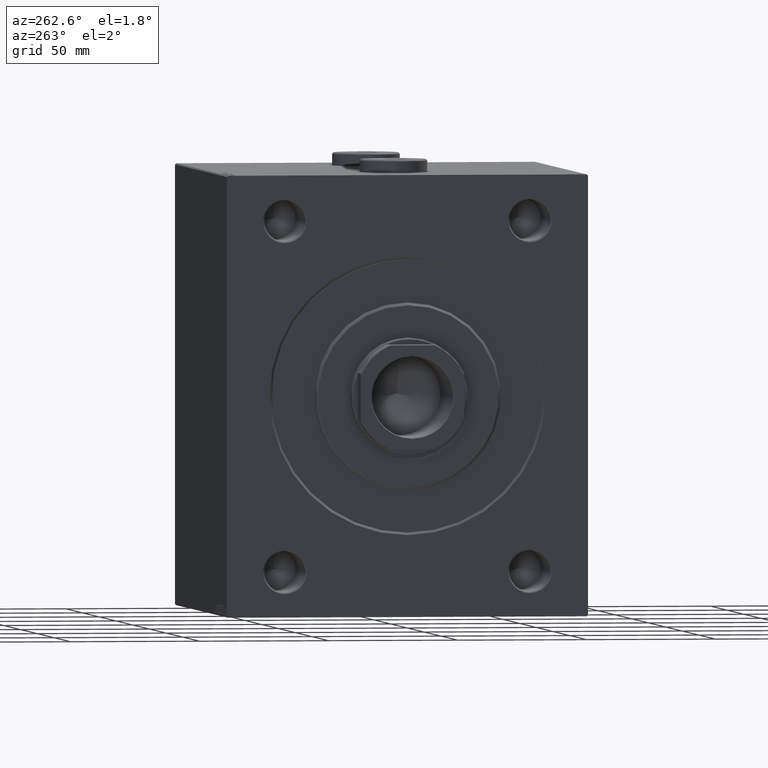
[diagram: clean part render]
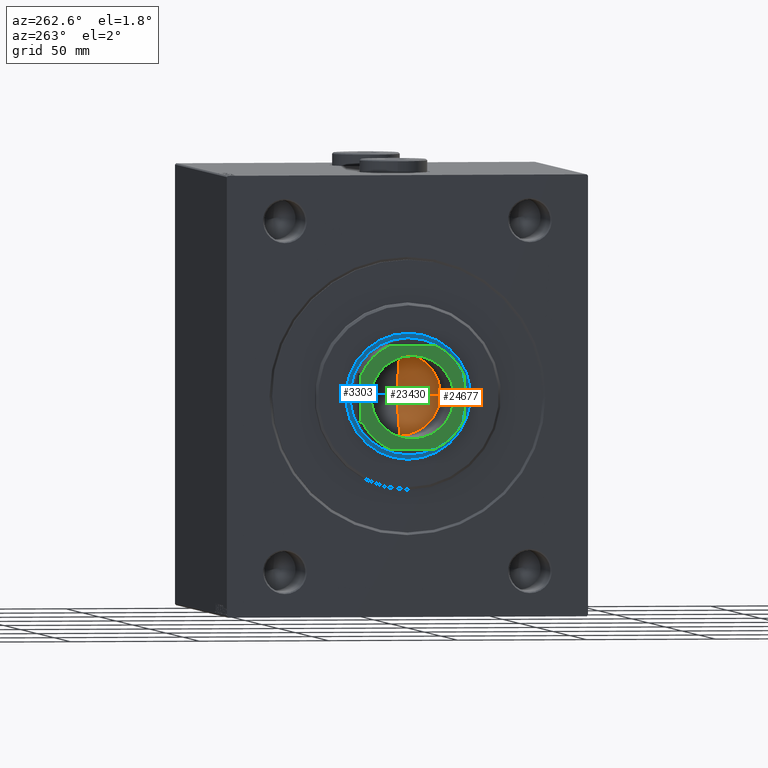
[diagram: same view with three faces highlighted in distinct colors, each labeled with its STEP entity id]
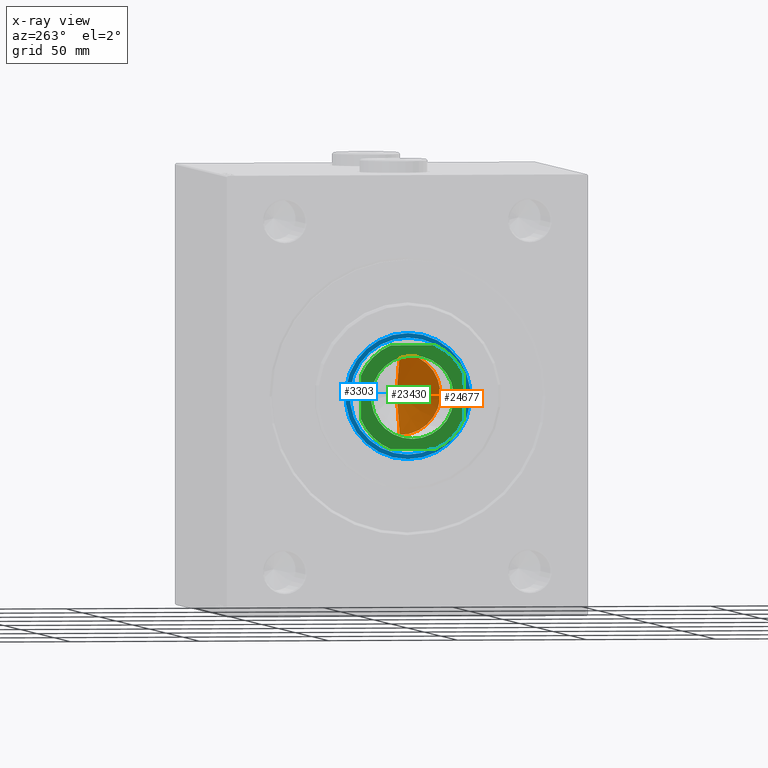
[diagram: x-ray of the same camera — body ghosted, the three highlighted faces saturated]
A machine part, auxiliary view with three faces highlighted in distinct colors.
The next image is the same camera in x-ray (body ghosted, the three faces saturated) — at least one of them is partly hidden behind the body in this view.
Their STEP definitions:

[orange] entity #24677 — the highlighted conical surface has half-angle 59 deg.
#809 = ORIENTED_EDGE ( 'NONE', *, *, #4243, .T. ) ;
#1504 = VERTEX_POINT ( 'NONE', #42912 ) ;
#2987 = DIRECTION ( 'NONE',  ( -0.000000000000000000, -0.000000000000000000, 1.000000000000000000 ) ) ;
#3400 = CARTESIAN_POINT ( 'NONE',  ( -15.74999999999999289, 1.928818708657080556E-15, 106.0000000000000142 ) ) ;
#4243 = EDGE_CURVE ( 'NONE', #23657, #1504, #35039, .T. ) ;
#7632 = CARTESIAN_POINT ( 'NONE',  ( -1.199718644317817648E-14, 0.000000000000000000, 96.53644525031593560 ) ) ;
#7640 = CONICAL_SURFACE ( 'NONE', #39381, 15.74999999999999289, 1.029744258676653867 ) ;
#11570 = AXIS2_PLACEMENT_3D ( 'NONE', #28990, #43110, #44473 ) ;
#16396 = CARTESIAN_POINT ( 'NONE',  ( 0.000000000000000000, 0.000000000000000000, 106.0000000000000142 ) ) ;
#20766 = DIRECTION ( 'NONE',  ( 1.000000000000000000, 0.000000000000000000, 0.000000000000000000 ) ) ;
#21135 = EDGE_LOOP ( 'NONE', ( #26453, #809, #21649 ) ) ;
#21649 = ORIENTED_EDGE ( 'NONE', *, *, #33182, .T. ) ;
#22288 = DIRECTION ( 'NONE',  ( 0.8571673007021120005, 0.000000000000000000, 0.5150380749100547106 ) ) ;
#23459 = CARTESIAN_POINT ( 'NONE',  ( 15.74999999999999289, 0.000000000000000000, 106.0000000000000142 ) ) ;
#23657 = VERTEX_POINT ( 'NONE', #7632 ) ;
#24217 = FACE_OUTER_BOUND ( 'NONE', #21135, .T. ) ;
#24677 = ADVANCED_FACE ( 'NONE', ( #24217 ), #7640, .F. ) ;
#26453 = ORIENTED_EDGE ( 'NONE', *, *, #43004, .F. ) ;
#27767 = VECTOR ( 'NONE', #34588, 1000.000000000000000 ) ;
#27984 = VECTOR ( 'NONE', #22288, 1000.000000000000000 ) ;
#28990 = CARTESIAN_POINT ( 'NONE',  ( 0.000000000000000000, 0.000000000000000000, 106.0000000000000142 ) ) ;
#29436 = LINE ( 'NONE', #40082, #27984 ) ;
#33182 = EDGE_CURVE ( 'NONE', #1504, #41858, #45515, .T. ) ;
#34588 = DIRECTION ( 'NONE',  ( -0.8571673007021120005, 1.049727191138618326E-16, 0.5150380749100547106 ) ) ;
#35039 = LINE ( 'NONE', #3400, #27767 ) ;
#39381 = AXIS2_PLACEMENT_3D ( 'NONE', #16396, #2987, #20766 ) ;
#40082 = CARTESIAN_POINT ( 'NONE',  ( 15.74999999999999289, 0.000000000000000000, 106.0000000000000142 ) ) ;
#41858 = VERTEX_POINT ( 'NONE', #23459 ) ;
#42912 = CARTESIAN_POINT ( 'NONE',  ( -15.74999999999999289, 1.928818708657080556E-15, 106.0000000000000142 ) ) ;
#43004 = EDGE_CURVE ( 'NONE', #23657, #41858, #29436, .T. ) ;
#43110 = DIRECTION ( 'NONE',  ( -0.000000000000000000, -0.000000000000000000, 1.000000000000000000 ) ) ;
#44473 = DIRECTION ( 'NONE',  ( 1.000000000000000000, 0.000000000000000000, 0.000000000000000000 ) ) ;
#45515 = CIRCLE ( 'NONE', #11570, 15.74999999999999289 ) ;

[blue] entity #3303 — the highlighted planar face has unit normal (-1, 0, 0).
#399 = ORIENTED_EDGE ( 'NONE', *, *, #16770, .F. ) ;
#1675 = DIRECTION ( 'NONE',  ( 1.000000000000000000, 0.000000000000000000, 0.000000000000000000 ) ) ;
#2277 = VERTEX_POINT ( 'NONE', #6247 ) ;
#3303 = ADVANCED_FACE ( 'NONE', ( #13141, #41322 ), #41551, .T. ) ;
#6247 = CARTESIAN_POINT ( 'NONE',  ( 1.500000000000000000, 0.000000000000000000, 24.25000000000000000 ) ) ;
#6352 = AXIS2_PLACEMENT_3D ( 'NONE', #23747, #37858, #45028 ) ;
#7366 = EDGE_LOOP ( 'NONE', ( #399, #30444 ) ) ;
#7612 = CIRCLE ( 'NONE', #33441, 22.50000000000000355 ) ;
#9375 = VERTEX_POINT ( 'NONE', #45445 ) ;
#9876 = AXIS2_PLACEMENT_3D ( 'NONE', #36201, #38767, #10799 ) ;
#10799 = DIRECTION ( 'NONE',  ( 0.000000000000000000, 0.000000000000000000, -1.000000000000000000 ) ) ;
#11320 = EDGE_CURVE ( 'NONE', #9375, #2277, #17745, .T. ) ;
#13141 = FACE_BOUND ( 'NONE', #7366, .T. ) ;
#16421 = CIRCLE ( 'NONE', #39285, 22.50000000000000355 ) ;
#16770 = EDGE_CURVE ( 'NONE', #31981, #17614, #16421, .T. ) ;
#17614 = VERTEX_POINT ( 'NONE', #45338 ) ;
#17745 = CIRCLE ( 'NONE', #40600, 24.25000000000000000 ) ;
#19207 = ORIENTED_EDGE ( 'NONE', *, *, #25464, .T. ) ;
#21246 = DIRECTION ( 'NONE',  ( 1.000000000000000000, 0.000000000000000000, 0.000000000000000000 ) ) ;
#21636 = EDGE_LOOP ( 'NONE', ( #19207, #26611 ) ) ;
#22443 = CIRCLE ( 'NONE', #9876, 24.25000000000000000 ) ;
#22858 = EDGE_CURVE ( 'NONE', #17614, #31981, #7612, .T. ) ;
#22917 = CARTESIAN_POINT ( 'NONE',  ( 1.500000000000000000, 0.000000000000000000, 0.000000000000000000 ) ) ;
#23747 = CARTESIAN_POINT ( 'NONE',  ( 1.500000000000000000, 0.000000000000000000, 0.000000000000000000 ) ) ;
#25464 = EDGE_CURVE ( 'NONE', #2277, #9375, #22443, .T. ) ;
#26611 = ORIENTED_EDGE ( 'NONE', *, *, #11320, .T. ) ;
#30302 = DIRECTION ( 'NONE',  ( 0.000000000000000000, 0.000000000000000000, -1.000000000000000000 ) ) ;
#30444 = ORIENTED_EDGE ( 'NONE', *, *, #22858, .F. ) ;
#31431 = DIRECTION ( 'NONE',  ( 1.000000000000000000, 0.000000000000000000, 0.000000000000000000 ) ) ;
#31869 = DIRECTION ( 'NONE',  ( 0.000000000000000000, 0.000000000000000000, -1.000000000000000000 ) ) ;
#31981 = VERTEX_POINT ( 'NONE', #37870 ) ;
#33441 = AXIS2_PLACEMENT_3D ( 'NONE', #42054, #31431, #42751 ) ;
#36201 = CARTESIAN_POINT ( 'NONE',  ( 1.500000000000000000, 0.000000000000000000, 0.000000000000000000 ) ) ;
#37858 = DIRECTION ( 'NONE',  ( 1.000000000000000000, 0.000000000000000000, 0.000000000000000000 ) ) ;
#37870 = CARTESIAN_POINT ( 'NONE',  ( 1.499999999999999556, 0.000000000000000000, -22.50000000000000355 ) ) ;
#38767 = DIRECTION ( 'NONE',  ( 1.000000000000000000, 0.000000000000000000, 0.000000000000000000 ) ) ;
#39285 = AXIS2_PLACEMENT_3D ( 'NONE', #45744, #21246, #31869 ) ;
#40600 = AXIS2_PLACEMENT_3D ( 'NONE', #22917, #1675, #30302 ) ;
#41322 = FACE_OUTER_BOUND ( 'NONE', #21636, .T. ) ;
#41551 = PLANE ( 'NONE',  #6352 ) ;
#42054 = CARTESIAN_POINT ( 'NONE',  ( 1.499999999999999556, 0.000000000000000000, 0.000000000000000000 ) ) ;
#42751 = DIRECTION ( 'NONE',  ( 0.000000000000000000, 0.000000000000000000, -1.000000000000000000 ) ) ;
#45028 = DIRECTION ( 'NONE',  ( 0.000000000000000000, 0.000000000000000000, -1.000000000000000000 ) ) ;
#45338 = CARTESIAN_POINT ( 'NONE',  ( 1.499999999999999556, 2.755455298081545172E-15, 22.50000000000000355 ) ) ;
#45445 = CARTESIAN_POINT ( 'NONE',  ( 1.500000000000000000, 2.969768487932331287E-15, -24.25000000000000000 ) ) ;
#45744 = CARTESIAN_POINT ( 'NONE',  ( 1.499999999999999556, 0.000000000000000000, 0.000000000000000000 ) ) ;

[green] entity #23430 — the highlighted planar face has unit normal (-1, 0, 0).
#383 = CARTESIAN_POINT ( 'NONE',  ( 8.419619943916520910, -20.00000000000001066, 144.0000000000000284 ) ) ;
#470 = VERTEX_POINT ( 'NONE', #42629 ) ;
#2636 = DIRECTION ( 'NONE',  ( -0.000000000000000000, 0.000000000000000000, 1.000000000000000000 ) ) ;
#3673 = CARTESIAN_POINT ( 'NONE',  ( 8.419619943916563543, 19.99999999999999289, 144.0000000000000284 ) ) ;
#3768 = DIRECTION ( 'NONE',  ( 1.000000000000000000, 0.000000000000000000, 0.000000000000000000 ) ) ;
#3926 = CIRCLE ( 'NONE', #34913, 16.05000000000006466 ) ;
#4250 = VERTEX_POINT ( 'NONE', #17034 ) ;
#4438 = DIRECTION ( 'NONE',  ( 1.000000000000000000, 0.000000000000000000, 0.000000000000000000 ) ) ;
#4910 = CIRCLE ( 'NONE', #27010, 21.69999999999993889 ) ;
#6248 = CARTESIAN_POINT ( 'NONE',  ( -8.419619943916700322, 19.99999999999999289, 144.0000000000000284 ) ) ;
#6491 = PLANE ( 'NONE',  #43760 ) ;
#6495 = DIRECTION ( 'NONE',  ( -0.000000000000000000, 0.000000000000000000, 1.000000000000000000 ) ) ;
#7232 = CARTESIAN_POINT ( 'NONE',  ( -20.00000000000000711, 19.99999999999998934, 144.0000000000000284 ) ) ;
#7535 = EDGE_CURVE ( 'NONE', #39235, #9754, #25749, .T. ) ;
#8171 = CARTESIAN_POINT ( 'NONE',  ( 0.000000000000000000, 0.000000000000000000, 144.0000000000000284 ) ) ;
#8764 = AXIS2_PLACEMENT_3D ( 'NONE', #8171, #25950, #32442 ) ;
#8799 = EDGE_CURVE ( 'NONE', #470, #38943, #27224, .T. ) ;
#8813 = FACE_BOUND ( 'NONE', #37124, .T. ) ;
#9754 = VERTEX_POINT ( 'NONE', #13051 ) ;
#9972 = LINE ( 'NONE', #16470, #19387 ) ;
#10332 = VERTEX_POINT ( 'NONE', #383 ) ;
#11015 = AXIS2_PLACEMENT_3D ( 'NONE', #21990, #36084, #4438 ) ;
#11264 = ORIENTED_EDGE ( 'NONE', *, *, #14609, .T. ) ;
#12881 = VECTOR ( 'NONE', #14620, 1000.000000000000000 ) ;
#13051 = CARTESIAN_POINT ( 'NONE',  ( -20.00000000000000355, 8.419619943916666571, 144.0000000000000284 ) ) ;
#13220 = DIRECTION ( 'NONE',  ( 1.000000000000000000, 0.000000000000000000, 0.000000000000000000 ) ) ;
#13426 = DIRECTION ( 'NONE',  ( 1.000000000000000000, 0.000000000000000000, 0.000000000000000000 ) ) ;
#14455 = CARTESIAN_POINT ( 'NONE',  ( -20.00000000000000711, 19.99999999999998934, 144.0000000000000284 ) ) ;
#14609 = EDGE_CURVE ( 'NONE', #9754, #42459, #21386, .T. ) ;
#14620 = DIRECTION ( 'NONE',  ( -1.000000000000000000, -8.673617379884035472E-17, -0.000000000000000000 ) ) ;
#14877 = ORIENTED_EDGE ( 'NONE', *, *, #40748, .T. ) ;
#16446 = CARTESIAN_POINT ( 'NONE',  ( 0.000000000000000000, 0.000000000000000000, 144.0000000000000284 ) ) ;
#16470 = CARTESIAN_POINT ( 'NONE',  ( -19.99999999999999645, -20.00000000000001066, 144.0000000000000284 ) ) ;
#16878 = ORIENTED_EDGE ( 'NONE', *, *, #8799, .T. ) ;
#17034 = CARTESIAN_POINT ( 'NONE',  ( -8.419619943916655913, -20.00000000000001066, 144.0000000000000284 ) ) ;
#17075 = DIRECTION ( 'NONE',  ( -2.602085213965210149E-16, 1.000000000000000000, -0.000000000000000000 ) ) ;
#17303 = LINE ( 'NONE', #45036, #41830 ) ;
#18426 = CIRCLE ( 'NONE', #28716, 21.69999999999993889 ) ;
#18504 = CARTESIAN_POINT ( 'NONE',  ( 19.99999999999999289, 8.419619943916563543, 144.0000000000000284 ) ) ;
#19387 = VECTOR ( 'NONE', #13220, 1000.000000000000000 ) ;
#19967 = CARTESIAN_POINT ( 'NONE',  ( 0.000000000000000000, 0.000000000000000000, 144.0000000000000284 ) ) ;
#20283 = VERTEX_POINT ( 'NONE', #18504 ) ;
#20587 = DIRECTION ( 'NONE',  ( 1.000000000000000000, 0.000000000000000000, 0.000000000000000000 ) ) ;
#20845 = ORIENTED_EDGE ( 'NONE', *, *, #37719, .T. ) ;
#21386 = LINE ( 'NONE', #14455, #28872 ) ;
#21767 = DIRECTION ( 'NONE',  ( 0.000000000000000000, -0.000000000000000000, -1.000000000000000000 ) ) ;
#21870 = EDGE_CURVE ( 'NONE', #4250, #10332, #9972, .T. ) ;
#21990 = CARTESIAN_POINT ( 'NONE',  ( 0.000000000000000000, 0.000000000000000000, 144.0000000000000284 ) ) ;
#22047 = DIRECTION ( 'NONE',  ( -0.000000000000000000, 0.000000000000000000, 1.000000000000000000 ) ) ;
#22158 = EDGE_LOOP ( 'NONE', ( #20845, #14877, #31373, #30814, #11264, #36418, #39066, #32393 ) ) ;
#22235 = FACE_OUTER_BOUND ( 'NONE', #22158, .T. ) ;
#22649 = EDGE_CURVE ( 'NONE', #38943, #470, #3926, .T. ) ;
#23430 = ADVANCED_FACE ( 'NONE', ( #8813, #22235 ), #6491, .T. ) ;
#23578 = DIRECTION ( 'NONE',  ( -0.000000000000000000, 0.000000000000000000, 1.000000000000000000 ) ) ;
#24754 = VERTEX_POINT ( 'NONE', #3673 ) ;
#25295 = DIRECTION ( 'NONE',  ( 2.602085213965210642E-16, -1.000000000000000000, 0.000000000000000000 ) ) ;
#25749 = CIRCLE ( 'NONE', #8764, 21.69999999999998863 ) ;
#25813 = EDGE_CURVE ( 'NONE', #42459, #4250, #26126, .T. ) ;
#25950 = DIRECTION ( 'NONE',  ( -0.000000000000000000, 0.000000000000000000, 1.000000000000000000 ) ) ;
#26126 = CIRCLE ( 'NONE', #39415, 21.69999999999998863 ) ;
#26834 = EDGE_CURVE ( 'NONE', #24754, #39235, #28235, .T. ) ;
#27010 = AXIS2_PLACEMENT_3D ( 'NONE', #38158, #6495, #20587 ) ;
#27224 = CIRCLE ( 'NONE', #11015, 16.05000000000006466 ) ;
#28235 = LINE ( 'NONE', #7232, #12881 ) ;
#28716 = AXIS2_PLACEMENT_3D ( 'NONE', #19967, #2636, #41900 ) ;
#28872 = VECTOR ( 'NONE', #25295, 1000.000000000000000 ) ;
#29694 = ORIENTED_EDGE ( 'NONE', *, *, #22649, .T. ) ;
#30337 = VERTEX_POINT ( 'NONE', #41946 ) ;
#30814 = ORIENTED_EDGE ( 'NONE', *, *, #7535, .T. ) ;
#31373 = ORIENTED_EDGE ( 'NONE', *, *, #26834, .T. ) ;
#31710 = EDGE_CURVE ( 'NONE', #10332, #30337, #4910, .T. ) ;
#32393 = ORIENTED_EDGE ( 'NONE', *, *, #31710, .T. ) ;
#32442 = DIRECTION ( 'NONE',  ( 1.000000000000000000, 0.000000000000000000, 0.000000000000000000 ) ) ;
#34913 = AXIS2_PLACEMENT_3D ( 'NONE', #42578, #21767, #3768 ) ;
#36084 = DIRECTION ( 'NONE',  ( 0.000000000000000000, -0.000000000000000000, -1.000000000000000000 ) ) ;
#36418 = ORIENTED_EDGE ( 'NONE', *, *, #25813, .T. ) ;
#37124 = EDGE_LOOP ( 'NONE', ( #29694, #16878 ) ) ;
#37719 = EDGE_CURVE ( 'NONE', #30337, #20283, #17303, .T. ) ;
#38158 = CARTESIAN_POINT ( 'NONE',  ( 0.000000000000000000, 0.000000000000000000, 144.0000000000000284 ) ) ;
#38943 = VERTEX_POINT ( 'NONE', #43478 ) ;
#39066 = ORIENTED_EDGE ( 'NONE', *, *, #21870, .T. ) ;
#39235 = VERTEX_POINT ( 'NONE', #6248 ) ;
#39415 = AXIS2_PLACEMENT_3D ( 'NONE', #43993, #22047, #43768 ) ;
#40018 = CARTESIAN_POINT ( 'NONE',  ( -20.00000000000000000, -8.419619943916679006, 144.0000000000000284 ) ) ;
#40748 = EDGE_CURVE ( 'NONE', #20283, #24754, #18426, .T. ) ;
#41830 = VECTOR ( 'NONE', #17075, 1000.000000000000000 ) ;
#41900 = DIRECTION ( 'NONE',  ( 1.000000000000000000, 0.000000000000000000, 0.000000000000000000 ) ) ;
#41946 = CARTESIAN_POINT ( 'NONE',  ( 20.00000000000000000, -8.419619943916552884, 144.0000000000000284 ) ) ;
#42459 = VERTEX_POINT ( 'NONE', #40018 ) ;
#42578 = CARTESIAN_POINT ( 'NONE',  ( 0.000000000000000000, 0.000000000000000000, 144.0000000000000284 ) ) ;
#42629 = CARTESIAN_POINT ( 'NONE',  ( -16.05000000000006466, 1.965558112631509699E-15, 144.0000000000000284 ) ) ;
#43478 = CARTESIAN_POINT ( 'NONE',  ( 16.05000000000006466, 0.000000000000000000, 144.0000000000000284 ) ) ;
#43760 = AXIS2_PLACEMENT_3D ( 'NONE', #16446, #23578, #13426 ) ;
#43768 = DIRECTION ( 'NONE',  ( 1.000000000000000000, 0.000000000000000000, 0.000000000000000000 ) ) ;
#43993 = CARTESIAN_POINT ( 'NONE',  ( 0.000000000000000000, 0.000000000000000000, 144.0000000000000284 ) ) ;
#45036 = CARTESIAN_POINT ( 'NONE',  ( 19.99999999999999289, 19.99999999999999289, 144.0000000000000284 ) ) ;